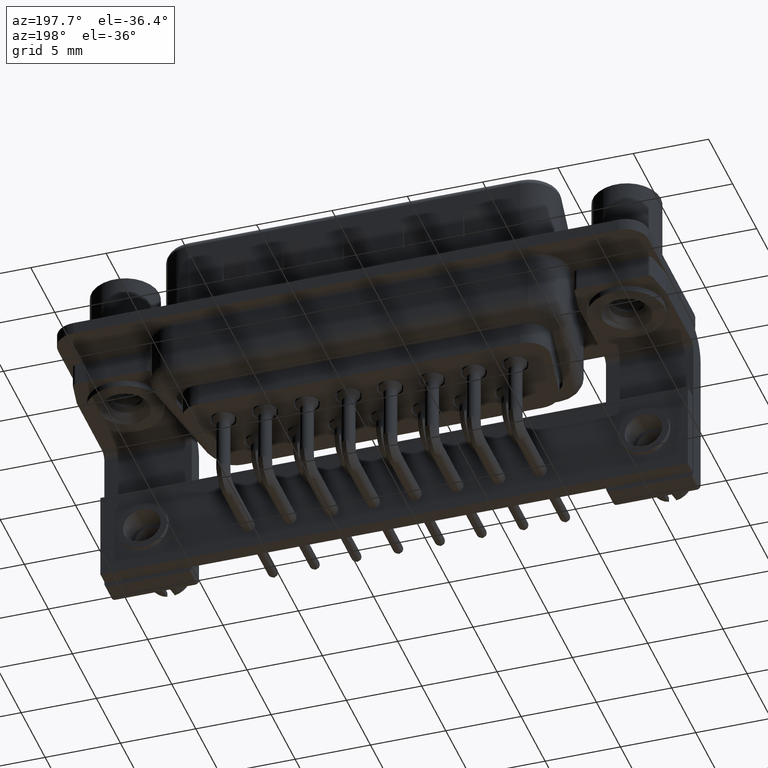
[diagram: clean part render]
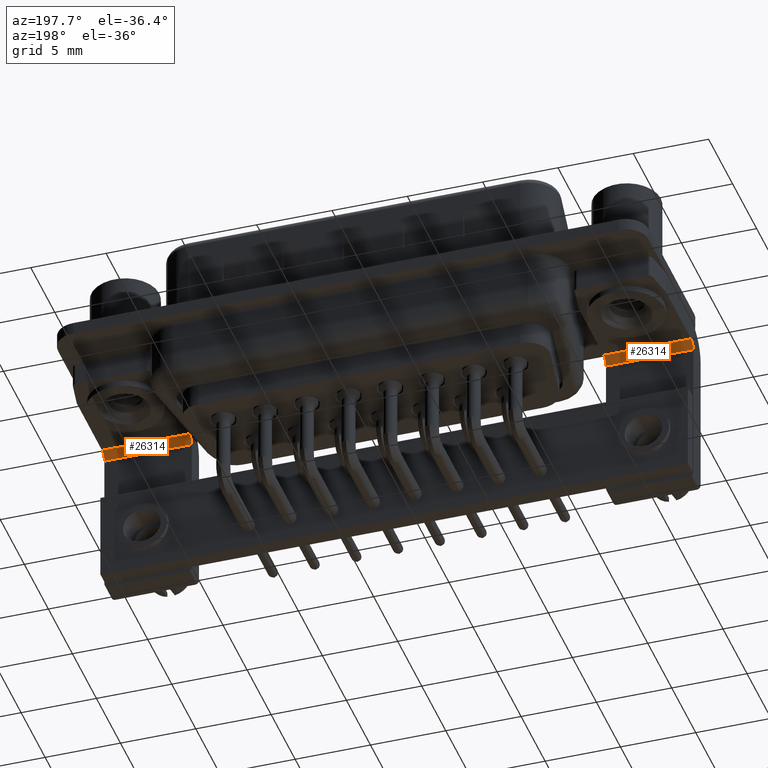
[diagram: same view with one multi-face feature highlighted, each face labeled with its STEP entity id]
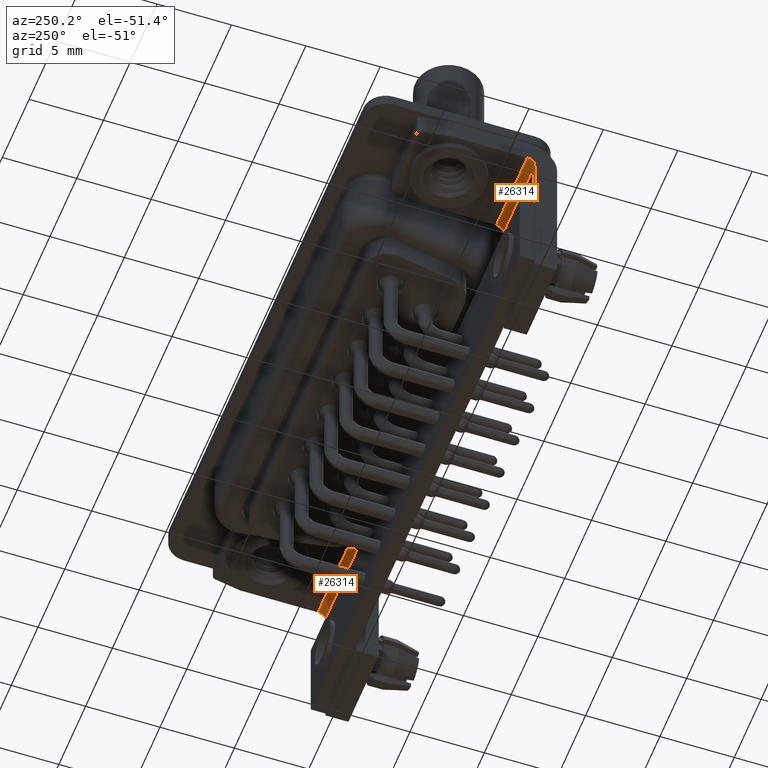
[diagram: same view with one multi-face feature highlighted, each face labeled with its STEP entity id]
A machine part, auxiliary view. The highlighted faces form ONE feature: a constant-radius fillet chain: 2 tangent blend faces with common blend radius 0.5 mm. The faces share edges in the B-rep.
A second angle (auxiliary view) of the same feature is appended — it is thin or edge-on in the first view.
Their STEP definitions:
[1] entity #26314 (Cylinder):
#1359 = EDGE_CURVE ( 'NONE', #10504, #12002, #12220, .T. ) ;
#1631 = EDGE_LOOP ( 'NONE', ( #25519, #15840, #25618, #23593 ) ) ;
#2479 = VERTEX_POINT ( 'NONE', #23193 ) ;
#2644 = LINE ( 'NONE', #22284, #22784 ) ;
#3639 = VERTEX_POINT ( 'NONE', #8336 ) ;
#4846 = DIRECTION ( 'NONE',  ( -1.000000000000000000, -0.0000000000000000000, -0.0000000000000000000 ) ) ;
#5991 = CARTESIAN_POINT ( 'NONE',  ( -2.899999999999999900, -4.249999999999999100, -2.400000000000001200 ) ) ;
#7376 = EDGE_CURVE ( 'NONE', #3639, #2479, #17314, .T. ) ;
#7842 = DIRECTION ( 'NONE',  ( -1.000000000000000000, -0.0000000000000000000, -0.0000000000000000000 ) ) ;
#8116 = DIRECTION ( 'NONE',  ( 0.0000000000000000000, 0.0000000000000000000, 1.000000000000000000 ) ) ;
#8336 = CARTESIAN_POINT ( 'NONE',  ( -2.899999999999999900, -4.749999999999999100, -2.400000000000001200 ) ) ;
#8706 = EDGE_CURVE ( 'NONE', #12002, #2479, #2644, .T. ) ;
#10504 = VERTEX_POINT ( 'NONE', #19885 ) ;
#11342 = DIRECTION ( 'NONE',  ( 0.0000000000000000000, 0.0000000000000000000, 1.000000000000000000 ) ) ;
#11409 = CARTESIAN_POINT ( 'NONE',  ( 2.899999999999999900, -4.749999999999999100, -2.400000000000001200 ) ) ;
#11827 = EDGE_CURVE ( 'NONE', #10504, #3639, #26845, .T. ) ;
#12002 = VERTEX_POINT ( 'NONE', #18096 ) ;
#12220 = CIRCLE ( 'NONE', #17797, 0.5000000000000000000 ) ;
#12351 = DIRECTION ( 'NONE',  ( -1.000000000000000000, -0.0000000000000000000, 0.0000000000000000000 ) ) ;
#12504 = AXIS2_PLACEMENT_3D ( 'NONE', #5991, #20426, #8116 ) ;
#15840 = ORIENTED_EDGE ( 'NONE', *, *, #8706, .F. ) ;
#16713 = CYLINDRICAL_SURFACE ( 'NONE', #23930, 0.5000000000000000000 ) ;
#16950 = VECTOR ( 'NONE', #23781, 1000.000000000000000 ) ;
#17314 = CIRCLE ( 'NONE', #12504, 0.5000000000000000000 ) ;
#17797 = AXIS2_PLACEMENT_3D ( 'NONE', #23999, #12351, #21978 ) ;
#18004 = FACE_OUTER_BOUND ( 'NONE', #1631, .T. ) ;
#18096 = CARTESIAN_POINT ( 'NONE',  ( 2.899999999999999900, -4.249999999999999100, -1.900000000000001000 ) ) ;
#19885 = CARTESIAN_POINT ( 'NONE',  ( 2.899999999999999900, -4.749999999999999100, -2.400000000000001200 ) ) ;
#20426 = DIRECTION ( 'NONE',  ( -1.000000000000000000, -0.0000000000000000000, 0.0000000000000000000 ) ) ;
#21978 = DIRECTION ( 'NONE',  ( 0.0000000000000000000, 0.0000000000000000000, 1.000000000000000000 ) ) ;
#22284 = CARTESIAN_POINT ( 'NONE',  ( 2.899999999999999900, -4.249999999999999100, -1.900000000000001000 ) ) ;
#22784 = VECTOR ( 'NONE', #7842, 1000.000000000000000 ) ;
#23193 = CARTESIAN_POINT ( 'NONE',  ( -2.899999999999999900, -4.249999999999999100, -1.900000000000001000 ) ) ;
#23593 = ORIENTED_EDGE ( 'NONE', *, *, #11827, .T. ) ;
#23722 = CARTESIAN_POINT ( 'NONE',  ( 2.899999999999999900, -4.249999999999999100, -2.400000000000001200 ) ) ;
#23781 = DIRECTION ( 'NONE',  ( -1.000000000000000000, -0.0000000000000000000, -0.0000000000000000000 ) ) ;
#23930 = AXIS2_PLACEMENT_3D ( 'NONE', #23722, #4846, #11342 ) ;
#23999 = CARTESIAN_POINT ( 'NONE',  ( 2.899999999999999900, -4.249999999999999100, -2.400000000000001200 ) ) ;
#25519 = ORIENTED_EDGE ( 'NONE', *, *, #7376, .T. ) ;
#25618 = ORIENTED_EDGE ( 'NONE', *, *, #1359, .F. ) ;
#26314 = ADVANCED_FACE ( 'NONE', ( #18004 ), #16713, .F. ) ;
#26845 = LINE ( 'NONE', #11409, #16950 ) ;
[2] entity #26314 (Cylinder):
#1359 = EDGE_CURVE ( 'NONE', #10504, #12002, #12220, .T. ) ;
#1631 = EDGE_LOOP ( 'NONE', ( #25519, #15840, #25618, #23593 ) ) ;
#2479 = VERTEX_POINT ( 'NONE', #23193 ) ;
#2644 = LINE ( 'NONE', #22284, #22784 ) ;
#3639 = VERTEX_POINT ( 'NONE', #8336 ) ;
#4846 = DIRECTION ( 'NONE',  ( -1.000000000000000000, -0.0000000000000000000, -0.0000000000000000000 ) ) ;
#5991 = CARTESIAN_POINT ( 'NONE',  ( -2.899999999999999900, -4.249999999999999100, -2.400000000000001200 ) ) ;
#7376 = EDGE_CURVE ( 'NONE', #3639, #2479, #17314, .T. ) ;
#7842 = DIRECTION ( 'NONE',  ( -1.000000000000000000, -0.0000000000000000000, -0.0000000000000000000 ) ) ;
#8116 = DIRECTION ( 'NONE',  ( 0.0000000000000000000, 0.0000000000000000000, 1.000000000000000000 ) ) ;
#8336 = CARTESIAN_POINT ( 'NONE',  ( -2.899999999999999900, -4.749999999999999100, -2.400000000000001200 ) ) ;
#8706 = EDGE_CURVE ( 'NONE', #12002, #2479, #2644, .T. ) ;
#10504 = VERTEX_POINT ( 'NONE', #19885 ) ;
#11342 = DIRECTION ( 'NONE',  ( 0.0000000000000000000, 0.0000000000000000000, 1.000000000000000000 ) ) ;
#11409 = CARTESIAN_POINT ( 'NONE',  ( 2.899999999999999900, -4.749999999999999100, -2.400000000000001200 ) ) ;
#11827 = EDGE_CURVE ( 'NONE', #10504, #3639, #26845, .T. ) ;
#12002 = VERTEX_POINT ( 'NONE', #18096 ) ;
#12220 = CIRCLE ( 'NONE', #17797, 0.5000000000000000000 ) ;
#12351 = DIRECTION ( 'NONE',  ( -1.000000000000000000, -0.0000000000000000000, 0.0000000000000000000 ) ) ;
#12504 = AXIS2_PLACEMENT_3D ( 'NONE', #5991, #20426, #8116 ) ;
#15840 = ORIENTED_EDGE ( 'NONE', *, *, #8706, .F. ) ;
#16713 = CYLINDRICAL_SURFACE ( 'NONE', #23930, 0.5000000000000000000 ) ;
#16950 = VECTOR ( 'NONE', #23781, 1000.000000000000000 ) ;
#17314 = CIRCLE ( 'NONE', #12504, 0.5000000000000000000 ) ;
#17797 = AXIS2_PLACEMENT_3D ( 'NONE', #23999, #12351, #21978 ) ;
#18004 = FACE_OUTER_BOUND ( 'NONE', #1631, .T. ) ;
#18096 = CARTESIAN_POINT ( 'NONE',  ( 2.899999999999999900, -4.249999999999999100, -1.900000000000001000 ) ) ;
#19885 = CARTESIAN_POINT ( 'NONE',  ( 2.899999999999999900, -4.749999999999999100, -2.400000000000001200 ) ) ;
#20426 = DIRECTION ( 'NONE',  ( -1.000000000000000000, -0.0000000000000000000, 0.0000000000000000000 ) ) ;
#21978 = DIRECTION ( 'NONE',  ( 0.0000000000000000000, 0.0000000000000000000, 1.000000000000000000 ) ) ;
#22284 = CARTESIAN_POINT ( 'NONE',  ( 2.899999999999999900, -4.249999999999999100, -1.900000000000001000 ) ) ;
#22784 = VECTOR ( 'NONE', #7842, 1000.000000000000000 ) ;
#23193 = CARTESIAN_POINT ( 'NONE',  ( -2.899999999999999900, -4.249999999999999100, -1.900000000000001000 ) ) ;
#23593 = ORIENTED_EDGE ( 'NONE', *, *, #11827, .T. ) ;
#23722 = CARTESIAN_POINT ( 'NONE',  ( 2.899999999999999900, -4.249999999999999100, -2.400000000000001200 ) ) ;
#23781 = DIRECTION ( 'NONE',  ( -1.000000000000000000, -0.0000000000000000000, -0.0000000000000000000 ) ) ;
#23930 = AXIS2_PLACEMENT_3D ( 'NONE', #23722, #4846, #11342 ) ;
#23999 = CARTESIAN_POINT ( 'NONE',  ( 2.899999999999999900, -4.249999999999999100, -2.400000000000001200 ) ) ;
#25519 = ORIENTED_EDGE ( 'NONE', *, *, #7376, .T. ) ;
#25618 = ORIENTED_EDGE ( 'NONE', *, *, #1359, .F. ) ;
#26314 = ADVANCED_FACE ( 'NONE', ( #18004 ), #16713, .F. ) ;
#26845 = LINE ( 'NONE', #11409, #16950 ) ;